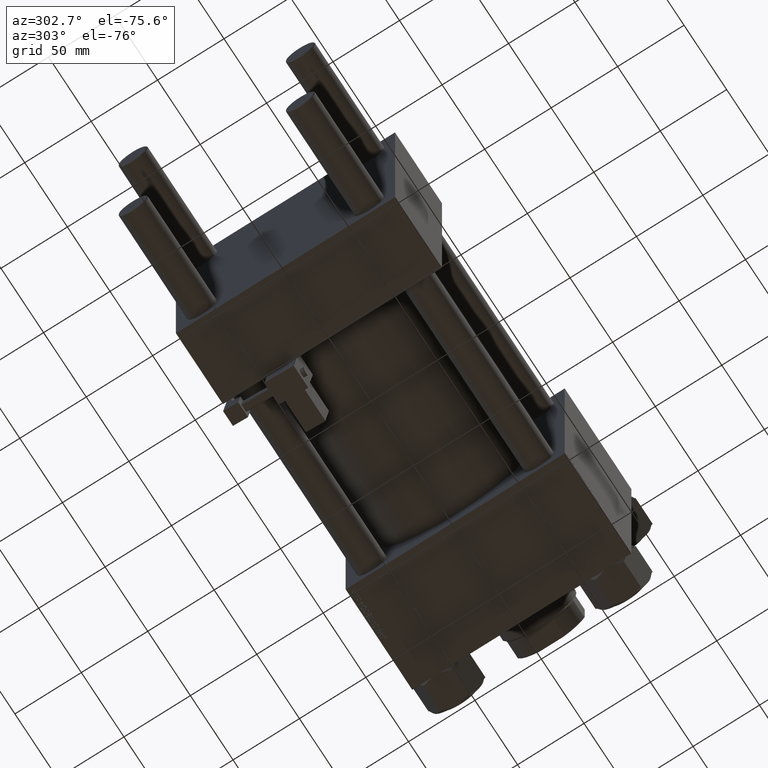
[diagram: clean part render]
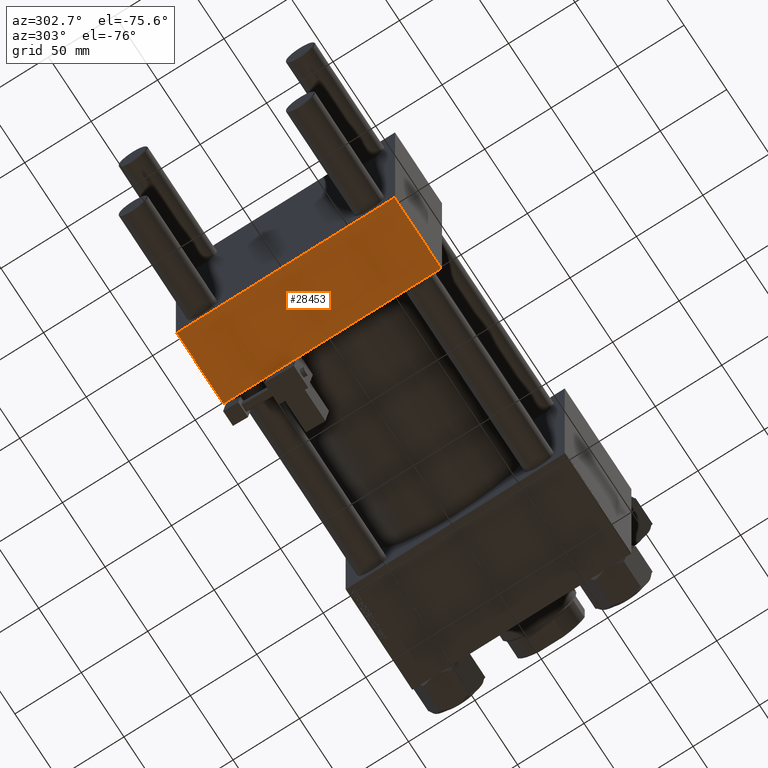
[diagram: same view with one face highlighted and labeled with its STEP entity id]
A machine part, auxiliary view. The second image highlights one B-rep face of the part: STEP entity #28453.
In plain terms, the highlighted planar face has unit normal (0, 0, -1).
Its self-contained STEP definition (entity closure, byte-faithful):
#1186 = DIRECTION ( 'NONE',  ( 1.000000000000000000, 0.000000000000000000, 0.000000000000000000 ) ) ;
#1461 = EDGE_CURVE ( 'NONE', #26552, #45322, #36975, .T. ) ;
#1733 = VECTOR ( 'NONE', #1186, 1000.000000000000000 ) ;
#3992 = ORIENTED_EDGE ( 'NONE', *, *, #13552, .F. ) ;
#5900 = LINE ( 'NONE', #9890, #19447 ) ;
#5931 = ORIENTED_EDGE ( 'NONE', *, *, #28181, .T. ) ;
#6141 = PLANE ( 'NONE',  #10246 ) ;
#6688 = DIRECTION ( 'NONE',  ( 0.000000000000000000, -1.000000000000000000, -1.682156097916903588E-16 ) ) ;
#8764 = CARTESIAN_POINT ( 'NONE',  ( 0.000000000000000000, -82.00000000000000000, -82.50000000000000000 ) ) ;
#9880 = DIRECTION ( 'NONE',  ( 0.000000000000000000, 1.000000000000000000, 1.682156097916903588E-16 ) ) ;
#9890 = CARTESIAN_POINT ( 'NONE',  ( 0.000000000000000000, 82.50000000000002842, -82.49999999999997158 ) ) ;
#10161 = LINE ( 'NONE', #18679, #14386 ) ;
#10246 = AXIS2_PLACEMENT_3D ( 'NONE', #22381, #21866, #9880 ) ;
#12051 = CARTESIAN_POINT ( 'NONE',  ( 55.00000000000000000, 82.00000000000005684, -82.49999999999997158 ) ) ;
#12226 = DIRECTION ( 'NONE',  ( -1.000000000000000000, 0.000000000000000000, 0.000000000000000000 ) ) ;
#13552 = EDGE_CURVE ( 'NONE', #47798, #45322, #5900, .T. ) ;
#14386 = VECTOR ( 'NONE', #50607, 1000.000000000000000 ) ;
#14530 = EDGE_CURVE ( 'NONE', #15392, #26552, #10161, .T. ) ;
#14888 = VECTOR ( 'NONE', #12226, 1000.000000000000000 ) ;
#15392 = VERTEX_POINT ( 'NONE', #12051 ) ;
#18679 = CARTESIAN_POINT ( 'NONE',  ( 55.00000000000000000, 82.50000000000002842, -82.49999999999997158 ) ) ;
#19447 = VECTOR ( 'NONE', #6688, 1000.000000000000000 ) ;
#19740 = ORIENTED_EDGE ( 'NONE', *, *, #1461, .T. ) ;
#21866 = DIRECTION ( 'NONE',  ( 0.000000000000000000, 1.682156097916903588E-16, -1.000000000000000000 ) ) ;
#22013 = ORIENTED_EDGE ( 'NONE', *, *, #14530, .T. ) ;
#22381 = CARTESIAN_POINT ( 'NONE',  ( 55.00000000000000000, 82.50000000000002842, -82.49999999999997158 ) ) ;
#26552 = VERTEX_POINT ( 'NONE', #42001 ) ;
#28181 = EDGE_CURVE ( 'NONE', #47798, #15392, #42666, .T. ) ;
#28453 = ADVANCED_FACE ( 'NONE', ( #37825 ), #6141, .T. ) ;
#36714 = CARTESIAN_POINT ( 'NONE',  ( 0.000000000000000000, -82.00000000000000000, -82.50000000000000000 ) ) ;
#36975 = LINE ( 'NONE', #8764, #14888 ) ;
#37825 = FACE_OUTER_BOUND ( 'NONE', #39007, .T. ) ;
#39007 = EDGE_LOOP ( 'NONE', ( #3992, #5931, #22013, #19740 ) ) ;
#42001 = CARTESIAN_POINT ( 'NONE',  ( 55.00000000000000000, -82.00000000000000000, -82.50000000000000000 ) ) ;
#42666 = LINE ( 'NONE', #50142, #1733 ) ;
#45322 = VERTEX_POINT ( 'NONE', #36714 ) ;
#47798 = VERTEX_POINT ( 'NONE', #48755 ) ;
#48755 = CARTESIAN_POINT ( 'NONE',  ( 0.000000000000000000, 82.00000000000005684, -82.49999999999997158 ) ) ;
#50142 = CARTESIAN_POINT ( 'NONE',  ( 55.00000000000000000, 82.00000000000005684, -82.49999999999997158 ) ) ;
#50607 = DIRECTION ( 'NONE',  ( 0.000000000000000000, -1.000000000000000000, -1.682156097916903588E-16 ) ) ;